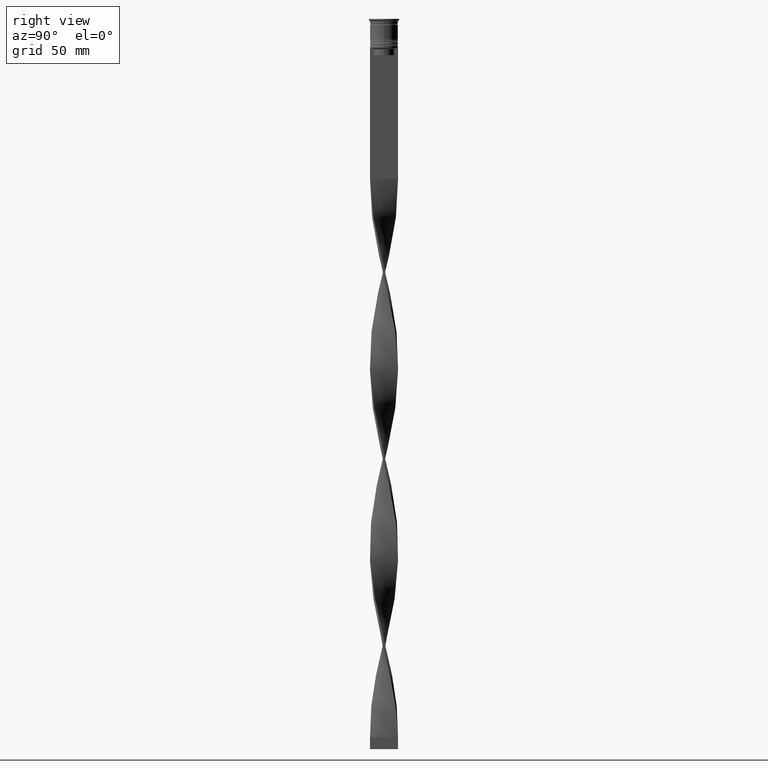
[diagram: clean part render]
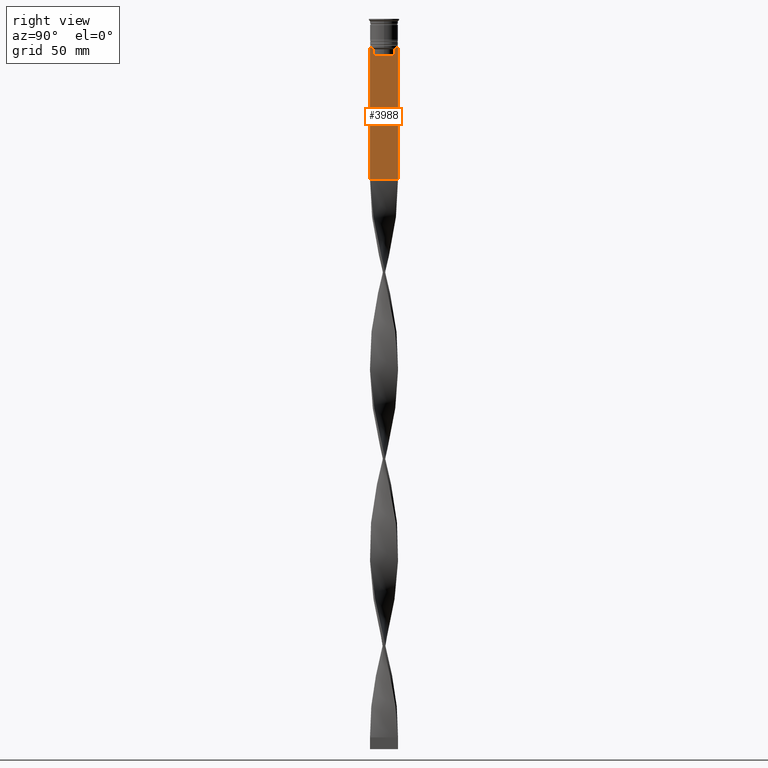
[diagram: same view with one face highlighted and labeled with its STEP entity id]
A machine part, right view. The second image highlights one B-rep face of the part: STEP entity #3988.
In plain terms, the highlighted planar face has unit normal (-1, 0, 0).
Its self-contained STEP definition (entity closure, byte-faithful):
#147 = EDGE_CURVE ( 'NONE', #1642, #225, #3301, .T. ) ;
#225 = VERTEX_POINT ( 'NONE', #1643 ) ;
#231 = EDGE_LOOP ( 'NONE', ( #3520, #3087, #1890, #260, #3409, #3390, #3377, #2107, #3652, #788, #1978, #1885 ) ) ;
#243 = CARTESIAN_POINT ( 'NONE',  ( 0.5000000000000002220, 4.371498598878878816, -15.50000000000000000 ) ) ;
#253 = VERTEX_POINT ( 'NONE', #3334 ) ;
#259 = VECTOR ( 'NONE', #3956, 1000.000000000000000 ) ;
#260 = ORIENTED_EDGE ( 'NONE', *, *, #1884, .T. ) ;
#459 = CARTESIAN_POINT ( 'NONE',  ( 0.5000000000000002220, -6.000000000000000000, -12.50000000000000000 ) ) ;
#534 = DIRECTION ( 'NONE',  ( 0.000000000000000000, 0.000000000000000000, -1.000000000000000000 ) ) ;
#550 = CARTESIAN_POINT ( 'NONE',  ( 0.5000000000000002220, 5.878775382679627626, -12.50000000000000000 ) ) ;
#623 = VECTOR ( 'NONE', #534, 1000.000000000000000 ) ;
#692 = EDGE_CURVE ( 'NONE', #1891, #3308, #3870, .T. ) ;
#739 = CARTESIAN_POINT ( 'NONE',  ( 0.5000000000000002220, 4.371498598878878816, -13.00000000000000178 ) ) ;
#784 = LINE ( 'NONE', #2702, #623 ) ;
#787 = LINE ( 'NONE', #459, #259 ) ;
#788 = ORIENTED_EDGE ( 'NONE', *, *, #3958, .T. ) ;
#848 = EDGE_CURVE ( 'NONE', #3076, #3717, #784, .T. ) ;
#887 = CARTESIAN_POINT ( 'NONE',  ( 0.5000000000000002220, -4.539195586926423331, -12.83338928448044314 ) ) ;
#920 = DIRECTION ( 'NONE',  ( 0.000000000000000000, 1.000000000000000000, 0.000000000000000000 ) ) ;
#965 = LINE ( 'NONE', #1676, #3905 ) ;
#1026 = CARTESIAN_POINT ( 'NONE',  ( 0.5000000000000002220, -4.371498598878878816, -13.00000000000000178 ) ) ;
#1053 = CARTESIAN_POINT ( 'NONE',  ( 0.5000000000000002220, -5.999999999999999112, -68.50000000000000000 ) ) ;
#1127 = CARTESIAN_POINT ( 'NONE',  ( 0.5000000000000002220, -6.000000000000000000, -0.4584054212077061097 ) ) ;
#1185 = CARTESIAN_POINT ( 'NONE',  ( 0.5000000000000002220, -4.371498598878878816, -13.00000000000000178 ) ) ;
#1231 = VECTOR ( 'NONE', #1773, 1000.000000000000000 ) ;
#1251 = CARTESIAN_POINT ( 'NONE',  ( 0.5000000000000002220, -4.371498598878878816, -15.50000000000000000 ) ) ;
#1334 = CARTESIAN_POINT ( 'NONE',  ( 0.5000000000000002220, -6.000000000000000000, -0.4584054212077061097 ) ) ;
#1561 = EDGE_CURVE ( 'NONE', #3308, #3064, #3971, .T. ) ;
#1576 = AXIS2_PLACEMENT_3D ( 'NONE', #1334, #2541, #3799 ) ;
#1586 = LINE ( 'NONE', #3543, #4035 ) ;
#1642 = VERTEX_POINT ( 'NONE', #3168 ) ;
#1643 = CARTESIAN_POINT ( 'NONE',  ( 0.5000000000000002220, 6.000000000000000888, -68.50000000000000000 ) ) ;
#1676 = CARTESIAN_POINT ( 'NONE',  ( 0.5000000000000002220, -4.371498598878878816, 0.000000000000000000 ) ) ;
#1773 = DIRECTION ( 'NONE',  ( 0.000000000000000000, 0.000000000000000000, -1.000000000000000000 ) ) ;
#1789 = EDGE_CURVE ( 'NONE', #2391, #3578, #3677, .T. ) ;
#1842 = CARTESIAN_POINT ( 'NONE',  ( 0.5000000000000002220, -6.000000000000000000, -12.50000000000000000 ) ) ;
#1875 = PLANE ( 'NONE',  #1576 ) ;
#1884 = EDGE_CURVE ( 'NONE', #3717, #4038, #2492, .T. ) ;
#1885 = ORIENTED_EDGE ( 'NONE', *, *, #2525, .T. ) ;
#1890 = ORIENTED_EDGE ( 'NONE', *, *, #848, .T. ) ;
#1891 = VERTEX_POINT ( 'NONE', #4076 ) ;
#1926 = CARTESIAN_POINT ( 'NONE',  ( 0.5000000000000002220, 4.539195634199896467, -12.83338923751318816 ) ) ;
#1928 = DIRECTION ( 'NONE',  ( 0.000000000000000000, -1.000000000000000000, 0.000000000000000000 ) ) ;
#1978 = ORIENTED_EDGE ( 'NONE', *, *, #147, .F. ) ;
#2071 = LINE ( 'NONE', #3929, #2439 ) ;
#2075 = CARTESIAN_POINT ( 'NONE',  ( 0.5000000000000002220, 6.000000000000000888, -0.4584054212077061097 ) ) ;
#2107 = ORIENTED_EDGE ( 'NONE', *, *, #692, .T. ) ;
#2143 = CARTESIAN_POINT ( 'NONE',  ( 0.5000000000000002220, -4.706831372970962768, -12.66671687695981774 ) ) ;
#2191 = FACE_OUTER_BOUND ( 'NONE', #231, .T. ) ;
#2216 = CARTESIAN_POINT ( 'NONE',  ( 0.5000000000000002220, 4.874423042781576676, -12.50000000000000000 ) ) ;
#2218 = CARTESIAN_POINT ( 'NONE',  ( 0.5000000000000002220, -6.000000000000000000, -12.50000000000000000 ) ) ;
#2230 = VECTOR ( 'NONE', #2533, 1000.000000000000000 ) ;
#2257 = CARTESIAN_POINT ( 'NONE',  ( 0.5000000000000002220, -6.000000000000000000, -12.50000000000000000 ) ) ;
#2354 = EDGE_CURVE ( 'NONE', #253, #3076, #3463, .T. ) ;
#2384 = DIRECTION ( 'NONE',  ( 0.000000000000000000, -1.000000000000000000, 0.000000000000000000 ) ) ;
#2391 = VERTEX_POINT ( 'NONE', #1026 ) ;
#2439 = VECTOR ( 'NONE', #2384, 1000.000000000000000 ) ;
#2492 = LINE ( 'NONE', #3434, #2230 ) ;
#2494 = VECTOR ( 'NONE', #3530, 1000.000000000000000 ) ;
#2525 = EDGE_CURVE ( 'NONE', #1642, #3888, #2071, .T. ) ;
#2533 = DIRECTION ( 'NONE',  ( 0.000000000000000000, -1.000000000000000000, 0.000000000000000000 ) ) ;
#2541 = DIRECTION ( 'NONE',  ( -1.000000000000000000, 0.000000000000000000, 0.000000000000000000 ) ) ;
#2685 = EDGE_CURVE ( 'NONE', #4038, #2391, #965, .T. ) ;
#2702 = CARTESIAN_POINT ( 'NONE',  ( 0.5000000000000002220, 4.371498598878878816, 0.000000000000000000 ) ) ;
#2785 = EDGE_CURVE ( 'NONE', #3578, #1891, #2884, .T. ) ;
#2884 = LINE ( 'NONE', #2218, #3642 ) ;
#2956 = EDGE_CURVE ( 'NONE', #3888, #253, #787, .T. ) ;
#3064 = VERTEX_POINT ( 'NONE', #1053 ) ;
#3076 = VERTEX_POINT ( 'NONE', #739 ) ;
#3087 = ORIENTED_EDGE ( 'NONE', *, *, #2354, .T. ) ;
#3100 = CARTESIAN_POINT ( 'NONE',  ( 0.5000000000000002220, -4.874423042781576676, -12.50000000000000000 ) ) ;
#3168 = CARTESIAN_POINT ( 'NONE',  ( 0.5000000000000002220, 6.000000000000000888, -12.50000000000000000 ) ) ;
#3198 = DIRECTION ( 'NONE',  ( -0.000000000000000000, -0.000000000000000000, 1.000000000000000000 ) ) ;
#3256 = CARTESIAN_POINT ( 'NONE',  ( 0.5000000000000002220, -4.874423042781576676, -12.50000000000000000 ) ) ;
#3301 = LINE ( 'NONE', #2075, #3484 ) ;
#3308 = VERTEX_POINT ( 'NONE', #1842 ) ;
#3334 = CARTESIAN_POINT ( 'NONE',  ( 0.5000000000000002220, 4.874423042781576676, -12.50000000000000000 ) ) ;
#3343 = DIRECTION ( 'NONE',  ( 0.000000000000000000, 0.000000000000000000, -1.000000000000000000 ) ) ;
#3377 = ORIENTED_EDGE ( 'NONE', *, *, #2785, .T. ) ;
#3390 = ORIENTED_EDGE ( 'NONE', *, *, #1789, .T. ) ;
#3409 = ORIENTED_EDGE ( 'NONE', *, *, #2685, .T. ) ;
#3434 = CARTESIAN_POINT ( 'NONE',  ( 0.5000000000000002220, 4.399999999999999467, -15.50000000000000000 ) ) ;
#3463 = B_SPLINE_CURVE_WITH_KNOTS ( 'NONE', 3,
 ( #2216, #3871, #1926, #3890 ),
 .UNSPECIFIED., .F., .F.,
 ( 4, 4 ),
 ( 0.008336552452178421987, 0.009045730124312839626 ),
 .UNSPECIFIED. ) ;
#3484 = VECTOR ( 'NONE', #3343, 1000.000000000000000 ) ;
#3520 = ORIENTED_EDGE ( 'NONE', *, *, #2956, .T. ) ;
#3530 = DIRECTION ( 'NONE',  ( 0.000000000000000000, -1.000000000000000000, 0.000000000000000000 ) ) ;
#3543 = CARTESIAN_POINT ( 'NONE',  ( 0.5000000000000002220, -6.000000000000000000, -68.50000000000000000 ) ) ;
#3578 = VERTEX_POINT ( 'NONE', #3256 ) ;
#3642 = VECTOR ( 'NONE', #1928, 1000.000000000000000 ) ;
#3652 = ORIENTED_EDGE ( 'NONE', *, *, #1561, .T. ) ;
#3677 = B_SPLINE_CURVE_WITH_KNOTS ( 'NONE', 3,
 ( #1185, #887, #2143, #3100 ),
 .UNSPECIFIED., .F., .F.,
 ( 4, 4 ),
 ( 0.02089901220910808308, 0.02161421017310286019 ),
 .UNSPECIFIED. ) ;
#3717 = VERTEX_POINT ( 'NONE', #243 ) ;
#3799 = DIRECTION ( 'NONE',  ( 0.000000000000000000, 0.000000000000000000, 1.000000000000000000 ) ) ;
#3870 = LINE ( 'NONE', #2257, #2494 ) ;
#3871 = CARTESIAN_POINT ( 'NONE',  ( 0.5000000000000002220, 4.706831415367288329, -12.66671683478479160 ) ) ;
#3888 = VERTEX_POINT ( 'NONE', #550 ) ;
#3890 = CARTESIAN_POINT ( 'NONE',  ( 0.5000000000000002220, 4.371498598878878816, -13.00000000000000178 ) ) ;
#3905 = VECTOR ( 'NONE', #3198, 1000.000000000000000 ) ;
#3929 = CARTESIAN_POINT ( 'NONE',  ( 0.5000000000000002220, -6.000000000000000000, -12.50000000000000000 ) ) ;
#3956 = DIRECTION ( 'NONE',  ( 0.000000000000000000, -1.000000000000000000, 0.000000000000000000 ) ) ;
#3958 = EDGE_CURVE ( 'NONE', #3064, #225, #1586, .T. ) ;
#3971 = LINE ( 'NONE', #1127, #1231 ) ;
#3988 = ADVANCED_FACE ( 'NONE', ( #2191 ), #1875, .F. ) ;
#4035 = VECTOR ( 'NONE', #920, 1000.000000000000000 ) ;
#4038 = VERTEX_POINT ( 'NONE', #1251 ) ;
#4076 = CARTESIAN_POINT ( 'NONE',  ( 0.5000000000000002220, -5.878775382679627626, -12.50000000000000000 ) ) ;